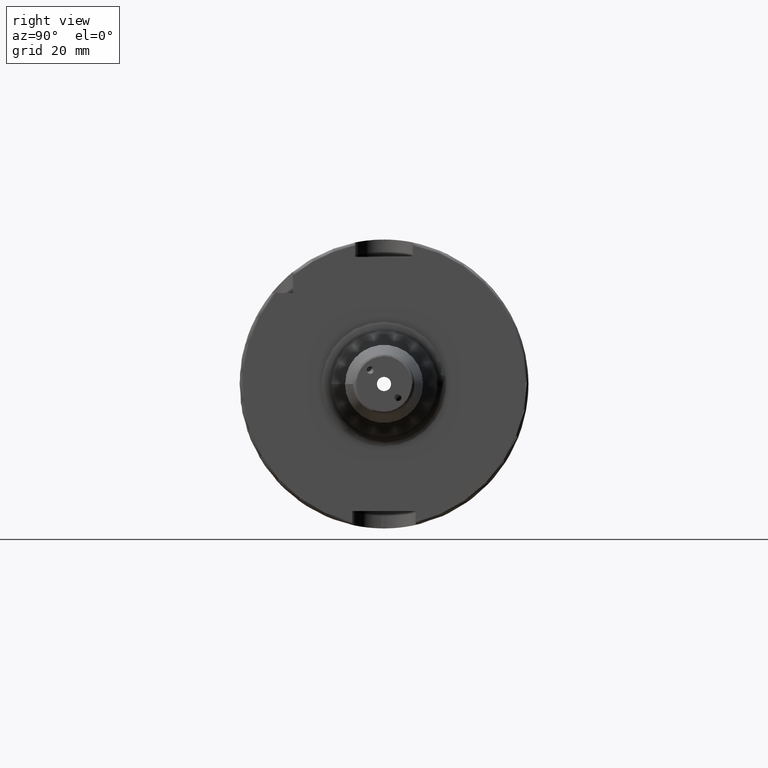
[diagram: clean part render]
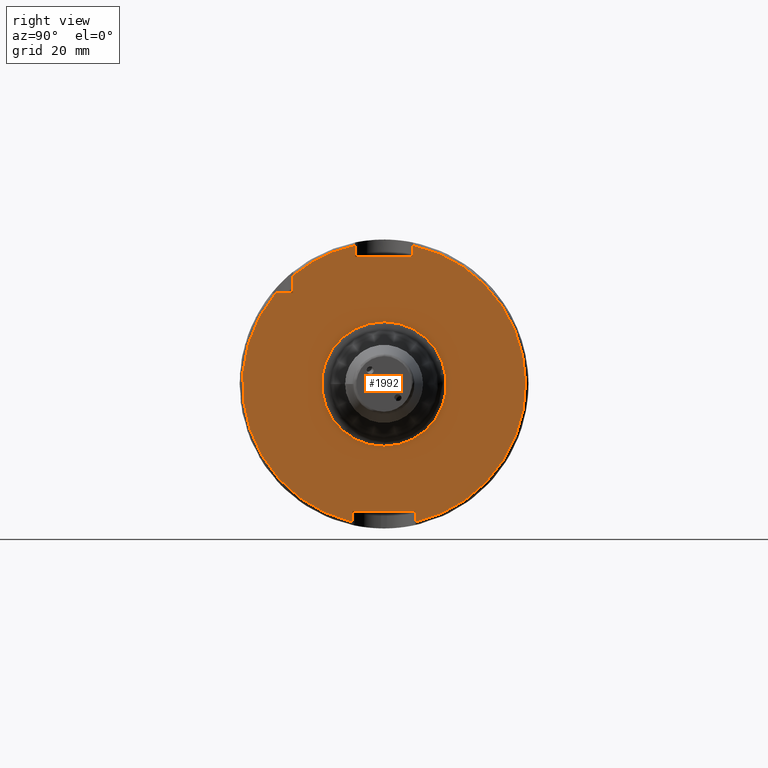
[diagram: same view with one face highlighted and labeled with its STEP entity id]
A machine part, right view. The second image highlights one B-rep face of the part: STEP entity #1992.
In plain terms, the highlighted planar face has unit normal (1, 0, 0).
Its self-contained STEP definition (entity closure, byte-faithful):
#88=FACE_BOUND('',#341,.T.);
#99=PLANE('',#2150);
#217=FACE_OUTER_BOUND('',#340,.T.);
#340=EDGE_LOOP('',(#1369,#1370,#1371,#1372,#1373,#1374,#1375,#1376,#1377,
#1378,#1379));
#341=EDGE_LOOP('',(#1380));
#467=LINE('',#3062,#575);
#468=LINE('',#3066,#576);
#469=LINE('',#3068,#577);
#470=LINE('',#3070,#578);
#471=LINE('',#3074,#579);
#472=LINE('',#3076,#580);
#473=LINE('',#3078,#581);
#474=LINE('',#3081,#582);
#575=VECTOR('',#2443,10.);
#576=VECTOR('',#2446,10.);
#577=VECTOR('',#2447,10.);
#578=VECTOR('',#2448,10.);
#579=VECTOR('',#2451,10.);
#580=VECTOR('',#2452,10.);
#581=VECTOR('',#2453,10.);
#582=VECTOR('',#2456,10.);
#687=CIRCLE('',#2146,21.561528131443);
#690=CIRCLE('',#2151,49.);
#691=CIRCLE('',#2152,49.);
#692=CIRCLE('',#2153,49.);
#821=VERTEX_POINT('',#3051);
#823=VERTEX_POINT('',#3060);
#824=VERTEX_POINT('',#3061);
#825=VERTEX_POINT('',#3063);
#826=VERTEX_POINT('',#3065);
#827=VERTEX_POINT('',#3067);
#828=VERTEX_POINT('',#3069);
#829=VERTEX_POINT('',#3071);
#830=VERTEX_POINT('',#3073);
#831=VERTEX_POINT('',#3075);
#832=VERTEX_POINT('',#3077);
#833=VERTEX_POINT('',#3079);
#1031=EDGE_CURVE('',#821,#821,#687,.T.);
#1035=EDGE_CURVE('',#823,#824,#467,.T.);
#1036=EDGE_CURVE('',#824,#825,#690,.T.);
#1037=EDGE_CURVE('',#825,#826,#468,.T.);
#1038=EDGE_CURVE('',#826,#827,#469,.T.);
#1039=EDGE_CURVE('',#827,#828,#470,.T.);
#1040=EDGE_CURVE('',#828,#829,#691,.T.);
#1041=EDGE_CURVE('',#829,#830,#471,.T.);
#1042=EDGE_CURVE('',#830,#831,#472,.T.);
#1043=EDGE_CURVE('',#831,#832,#473,.T.);
#1044=EDGE_CURVE('',#832,#833,#692,.T.);
#1045=EDGE_CURVE('',#833,#823,#474,.T.);
#1369=ORIENTED_EDGE('',*,*,#1035,.T.);
#1370=ORIENTED_EDGE('',*,*,#1036,.T.);
#1371=ORIENTED_EDGE('',*,*,#1037,.T.);
#1372=ORIENTED_EDGE('',*,*,#1038,.T.);
#1373=ORIENTED_EDGE('',*,*,#1039,.T.);
#1374=ORIENTED_EDGE('',*,*,#1040,.T.);
#1375=ORIENTED_EDGE('',*,*,#1041,.T.);
#1376=ORIENTED_EDGE('',*,*,#1042,.T.);
#1377=ORIENTED_EDGE('',*,*,#1043,.T.);
#1378=ORIENTED_EDGE('',*,*,#1044,.T.);
#1379=ORIENTED_EDGE('',*,*,#1045,.T.);
#1380=ORIENTED_EDGE('',*,*,#1031,.F.);
#1992=ADVANCED_FACE('',(#217,#88),#99,.T.);
#2146=AXIS2_PLACEMENT_3D('',#3053,#2432,#2433);
#2150=AXIS2_PLACEMENT_3D('',#3059,#2441,#2442);
#2151=AXIS2_PLACEMENT_3D('',#3064,#2444,#2445);
#2152=AXIS2_PLACEMENT_3D('',#3072,#2449,#2450);
#2153=AXIS2_PLACEMENT_3D('',#3080,#2454,#2455);
#2432=DIRECTION('center_axis',(1.,0.,0.));
#2433=DIRECTION('ref_axis',(0.,-1.,-1.22464679914735E-16));
#2441=DIRECTION('center_axis',(1.,0.,0.));
#2442=DIRECTION('ref_axis',(0.,0.,-1.));
#2443=DIRECTION('',(0.,-1.,0.));
#2444=DIRECTION('center_axis',(1.,0.,0.));
#2445=DIRECTION('ref_axis',(0.,0.,-1.));
#2446=DIRECTION('',(0.,0.,1.));
#2447=DIRECTION('',(0.,1.,0.));
#2448=DIRECTION('',(0.,0.,-1.));
#2449=DIRECTION('center_axis',(1.,0.,0.));
#2450=DIRECTION('ref_axis',(0.,0.,-1.));
#2451=DIRECTION('',(0.,0.,-1.));
#2452=DIRECTION('',(0.,-1.,0.));
#2453=DIRECTION('',(0.,0.,1.));
#2454=DIRECTION('center_axis',(1.,0.,0.));
#2455=DIRECTION('ref_axis',(0.,0.,-1.));
#2456=DIRECTION('',(0.,0.,-1.));
#3051=CARTESIAN_POINT('',(29.,-2.64052564108973E-15,-21.561528131443));
#3053=CARTESIAN_POINT('Origin',(29.,0.,0.));
#3059=CARTESIAN_POINT('Origin',(29.,0.,0.));
#3060=CARTESIAN_POINT('',(29.,-31.5,31.5));
#3061=CARTESIAN_POINT('',(29.,-37.5333185316726,31.5));
#3062=CARTESIAN_POINT('',(29.,-18.25,31.5));
#3063=CARTESIAN_POINT('',(29.,-11.,-47.7493455452533));
#3064=CARTESIAN_POINT('Origin',(29.,0.,0.));
#3065=CARTESIAN_POINT('',(29.,-11.,-44.));
#3066=CARTESIAN_POINT('',(29.,-11.,-22.));
#3067=CARTESIAN_POINT('',(29.,11.,-44.));
#3068=CARTESIAN_POINT('',(29.,-5.55111512312578E-16,-44.));
#3069=CARTESIAN_POINT('',(29.,11.,-47.7493455452533));
#3070=CARTESIAN_POINT('',(29.,11.,-22.));
#3071=CARTESIAN_POINT('',(29.,10.,47.9687398208458));
#3072=CARTESIAN_POINT('Origin',(29.,0.,0.));
#3073=CARTESIAN_POINT('',(29.,10.,44.));
#3074=CARTESIAN_POINT('',(29.,10.,22.));
#3075=CARTESIAN_POINT('',(29.,-10.,44.));
#3076=CARTESIAN_POINT('',(29.,0.,44.));
#3077=CARTESIAN_POINT('',(29.,-10.,47.9687398208458));
#3078=CARTESIAN_POINT('',(29.,-10.,22.));
#3079=CARTESIAN_POINT('',(29.,-31.5,37.5333185316726));
#3080=CARTESIAN_POINT('Origin',(29.,0.,0.));
#3081=CARTESIAN_POINT('',(29.,-31.5,15.75));